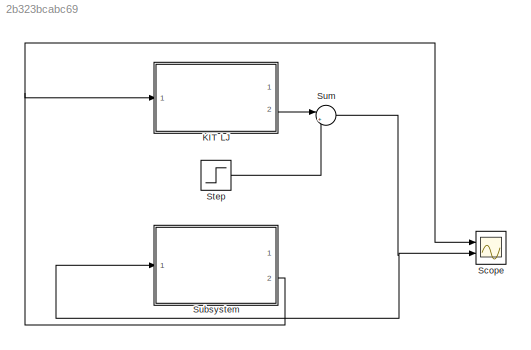
MODEL slx_2b323bcabc69
KIND model
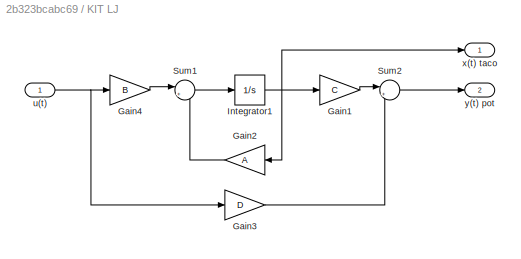
BLOCK [SubSystem] KIT LJ
  Ports = [1, 2]
  RequestExecContextInheritance = off
BLOCK [Gain] KIT LJ/Gain1
  Gain = C
  Multiplication = Matrix(K*u)
  OutDataTypeStr = Inherit: Inherit via internal rule
  ParamDataTypeStr = Inherit: Inherit via internal rule
  SaturateOnIntegerOverflow = off
BLOCK [Gain] KIT LJ/Gain2
  Gain = A
  Multiplication = Matrix(K*u)
  OutDataTypeStr = Inherit: Inherit via internal rule
  ParamDataTypeStr = Inherit: Inherit via internal rule
  SaturateOnIntegerOverflow = off
BLOCK [Gain] KIT LJ/Gain3
  Gain = D
  Multiplication = Matrix(K*u)
  OutDataTypeStr = Inherit: Inherit via internal rule
  ParamDataTypeStr = Inherit: Inherit via internal rule
  SaturateOnIntegerOverflow = off
BLOCK [Gain] KIT LJ/Gain4
  Gain = B
  Multiplication = Matrix(K*u)
  OutDataTypeStr = Inherit: Inherit via internal rule
  ParamDataTypeStr = Inherit: Inherit via internal rule
  SaturateOnIntegerOverflow = off
BLOCK [Integrator] KIT LJ/Integrator1
  Ports = [1, 1]
BLOCK [Sum] KIT LJ/Sum1
  IconShape = round
  InputSameDT = off
  Inputs = |++
  OutDataTypeStr = Inherit: Inherit via internal rule
  Ports = [2, 1]
  SaturateOnIntegerOverflow = off
BLOCK [Sum] KIT LJ/Sum2
  IconShape = round
  InputSameDT = off
  Inputs = |++
  OutDataTypeStr = Inherit: Inherit via internal rule
  Ports = [2, 1]
  SaturateOnIntegerOverflow = off
BLOCK [Inport] KIT LJ/u(t)
  IconDisplay = Port number
BLOCK [Outport] KIT LJ/x(t) taco
  IconDisplay = Port number
BLOCK [Outport] KIT LJ/y(t) pot
  IconDisplay = Port number
  Port = 2
BLOCK [Scope] Scope
  Floating = off
  NumInputPorts = 2
  Ports = [2]
  ShowLegends = off
  YMax = 5~5
  YMin = -5~-5
  ZoomMode = yonly
BLOCK [Step] Step
  SampleTime = 0
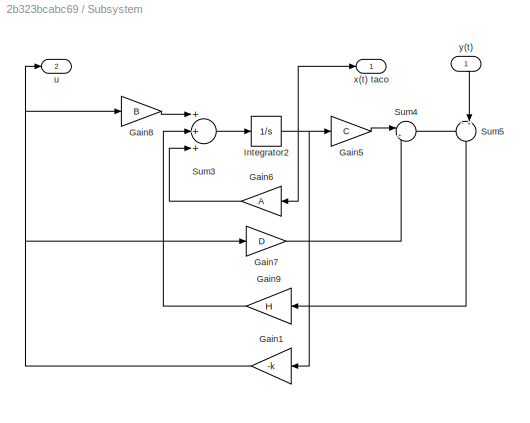
BLOCK [SubSystem] Subsystem
  Ports = [1, 2]
  RequestExecContextInheritance = off
BLOCK [Gain] Subsystem/Gain1
  Gain = -k
  Multiplication = Matrix(K*u)
  OutDataTypeStr = Inherit: Inherit via internal rule
  ParamDataTypeStr = Inherit: Inherit via internal rule
  SaturateOnIntegerOverflow = off
BLOCK [Gain] Subsystem/Gain5
  Gain = C
  Multiplication = Matrix(K*u)
  OutDataTypeStr = Inherit: Inherit via internal rule
  ParamDataTypeStr = Inherit: Inherit via internal rule
  SaturateOnIntegerOverflow = off
BLOCK [Gain] Subsystem/Gain6
  Gain = A
  Multiplication = Matrix(K*u)
  OutDataTypeStr = Inherit: Inherit via internal rule
  ParamDataTypeStr = Inherit: Inherit via internal rule
  SaturateOnIntegerOverflow = off
BLOCK [Gain] Subsystem/Gain7
  Gain = D
  Multiplication = Matrix(K*u)
  OutDataTypeStr = Inherit: Inherit via internal rule
  ParamDataTypeStr = Inherit: Inherit via internal rule
  SaturateOnIntegerOverflow = off
BLOCK [Gain] Subsystem/Gain8
  Gain = B
  Multiplication = Matrix(K*u)
  OutDataTypeStr = Inherit: Inherit via internal rule
  ParamDataTypeStr = Inherit: Inherit via internal rule
  SaturateOnIntegerOverflow = off
BLOCK [Gain] Subsystem/Gain9
  Gain = H
  Multiplication = Matrix(K*u)
  OutDataTypeStr = Inherit: Inherit via internal rule
  ParamDataTypeStr = Inherit: Inherit via internal rule
  SaturateOnIntegerOverflow = off
BLOCK [Integrator] Subsystem/Integrator2
  Ports = [1, 1]
BLOCK [Sum] Subsystem/Sum3
  InputSameDT = off
  Inputs = +++
  OutDataTypeStr = Inherit: Inherit via internal rule
  Ports = [3, 1]
  SaturateOnIntegerOverflow = off
BLOCK [Sum] Subsystem/Sum4
  IconShape = round
  InputSameDT = off
  Inputs = |++
  OutDataTypeStr = Inherit: Inherit via internal rule
  Ports = [2, 1]
  SaturateOnIntegerOverflow = off
BLOCK [Sum] Subsystem/Sum5
  IconShape = round
  InputSameDT = off
  Inputs = -+|
  OutDataTypeStr = Inherit: Inherit via internal rule
  Ports = [2, 1]
  SaturateOnIntegerOverflow = off
BLOCK [Outport] Subsystem/u
  IconDisplay = Port number
  Port = 2
BLOCK [Outport] Subsystem/x(t) taco
  IconDisplay = Port number
BLOCK [Inport] Subsystem/y(t)
  IconDisplay = Port number
BLOCK [Sum] Sum
  IconShape = round
  InputSameDT = off
  Inputs = |+-
  OutDataTypeStr = Inherit: Inherit via internal rule
  Ports = [2, 1]
  SaturateOnIntegerOverflow = off
LINE KIT LJ/Gain1:1 -> KIT LJ/Sum2:1
LINE KIT LJ/Gain2:1 -> KIT LJ/Sum1:2
LINE KIT LJ/Gain3:1 -> KIT LJ/Sum2:2
LINE KIT LJ/Gain4:1 -> KIT LJ/Sum1:1
NET KIT LJ/Integrator1:1 -> KIT LJ/Gain1:1, KIT LJ/Gain2:1, KIT LJ/x(t) taco:1
LINE KIT LJ/Sum1:1 -> KIT LJ/Integrator1:1
LINE KIT LJ/Sum2:1 -> KIT LJ/y(t) pot:1
NET KIT LJ/u(t):1 -> KIT LJ/Gain3:1, KIT LJ/Gain4:1
LINE KIT LJ:2 -> Sum:1
LINE Step:1 -> Sum:2
NET Subsystem/Gain1:1 -> Subsystem/Gain7:1, Subsystem/Gain8:1, Subsystem/u:1
LINE Subsystem/Gain5:1 -> Subsystem/Sum4:1
LINE Subsystem/Gain6:1 -> Subsystem/Sum3:3
LINE Subsystem/Gain7:1 -> Subsystem/Sum4:2
LINE Subsystem/Gain8:1 -> Subsystem/Sum3:1
LINE Subsystem/Gain9:1 -> Subsystem/Sum3:2
NET Subsystem/Integrator2:1 -> Subsystem/Gain1:1, Subsystem/Gain5:1, Subsystem/Gain6:1, Subsystem/x(t) taco:1
LINE Subsystem/Sum3:1 -> Subsystem/Integrator2:1
LINE Subsystem/Sum4:1 -> Subsystem/Sum5:1
LINE Subsystem/Sum5:1 -> Subsystem/Gain9:1
LINE Subsystem/y(t):1 -> Subsystem/Sum5:2
NET Subsystem:2 -> KIT LJ:1, Scope:1
NET Sum:1 -> Scope:2, Subsystem:1
note: NET lines group one-source signal fan-out (src -> all destinations, sorted); 1:1 wires keep LINE
